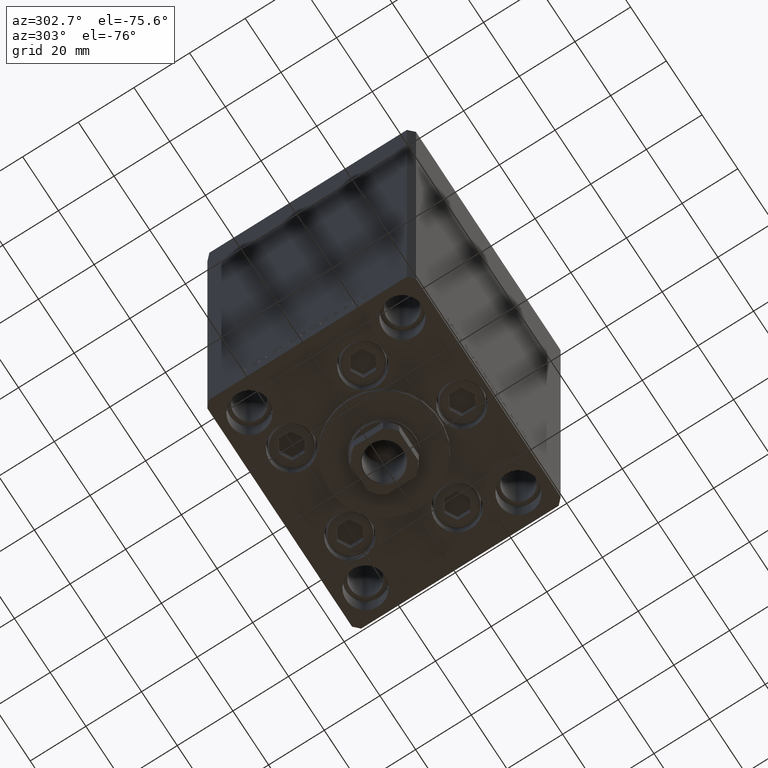
[diagram: clean part render]
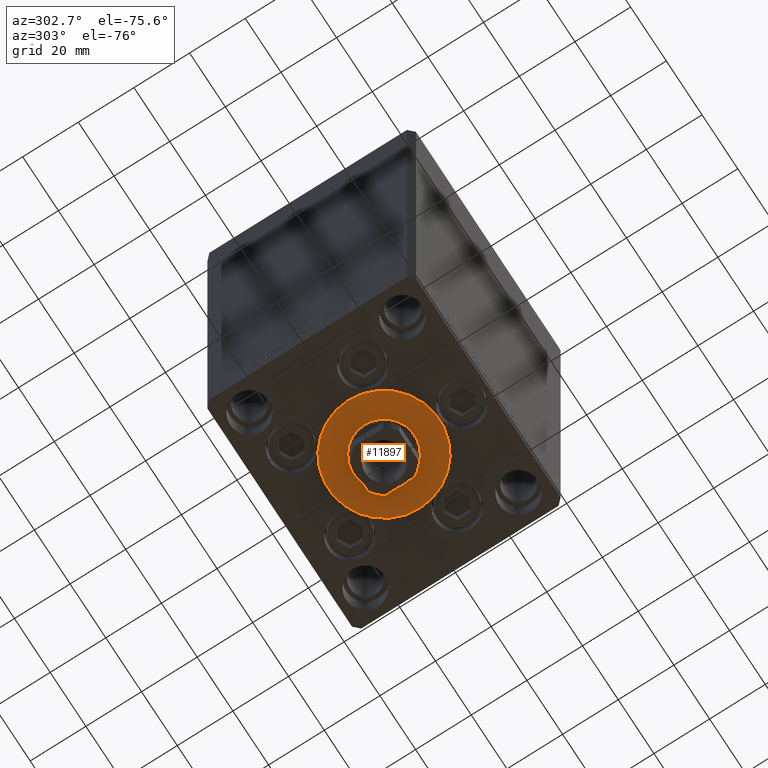
[diagram: same view with one face highlighted and labeled with its STEP entity id]
A machine part, auxiliary view. The second image highlights one B-rep face of the part: STEP entity #11897.
In plain terms, the highlighted planar face has unit normal (0, 0, -1).
Its self-contained STEP definition (entity closure, byte-faithful):
#1716 = EDGE_CURVE ( 'NONE', #13270, #27009, #39607, .T. ) ;
#3123 = DIRECTION ( 'NONE',  ( 1.000000000000000000, 0.000000000000000000, -0.000000000000000000 ) ) ;
#3758 = AXIS2_PLACEMENT_3D ( 'NONE', #9065, #23410, #42478 ) ;
#3853 = DIRECTION ( 'NONE',  ( 0.000000000000000000, 0.000000000000000000, 1.000000000000000000 ) ) ;
#5379 = DIRECTION ( 'NONE',  ( 1.000000000000000000, 0.000000000000000000, 0.000000000000000000 ) ) ;
#5618 = AXIS2_PLACEMENT_3D ( 'NONE', #7319, #3853, #47723 ) ;
#6030 = EDGE_LOOP ( 'NONE', ( #14663, #36541 ) ) ;
#6121 = ORIENTED_EDGE ( 'NONE', *, *, #1716, .F. ) ;
#7319 = CARTESIAN_POINT ( 'NONE',  ( 0.000000000000000000, -6.938893903907228378E-15, 2.000000000000000000 ) ) ;
#8206 = AXIS2_PLACEMENT_3D ( 'NONE', #20210, #31110, #5379 ) ;
#9065 = CARTESIAN_POINT ( 'NONE',  ( 0.000000000000000000, -6.938893903907228378E-15, 2.000000000000000000 ) ) ;
#11897 = ADVANCED_FACE ( 'NONE', ( #17959, #33067 ), #47668, .T. ) ;
#13270 = VERTEX_POINT ( 'NONE', #42150 ) ;
#13845 = EDGE_LOOP ( 'NONE', ( #37184, #6121 ) ) ;
#14663 = ORIENTED_EDGE ( 'NONE', *, *, #40771, .T. ) ;
#16167 = CARTESIAN_POINT ( 'NONE',  ( 11.00000000000000000, -6.938893903907228378E-15, 2.000000000000000000 ) ) ;
#17959 = FACE_BOUND ( 'NONE', #13845, .T. ) ;
#18211 = AXIS2_PLACEMENT_3D ( 'NONE', #32340, #48154, #3123 ) ;
#20210 = CARTESIAN_POINT ( 'NONE',  ( 0.000000000000000000, -6.938893903907228378E-15, 2.000000000000000000 ) ) ;
#23410 = DIRECTION ( 'NONE',  ( 0.000000000000000000, 0.000000000000000000, 1.000000000000000000 ) ) ;
#23796 = EDGE_CURVE ( 'NONE', #27009, #13270, #32730, .T. ) ;
#27009 = VERTEX_POINT ( 'NONE', #16167 ) ;
#29178 = CARTESIAN_POINT ( 'NONE',  ( 20.00000000000000000, -4.489600305612522259E-15, 2.000000000000000000 ) ) ;
#30187 = VERTEX_POINT ( 'NONE', #29178 ) ;
#31110 = DIRECTION ( 'NONE',  ( 0.000000000000000000, 0.000000000000000000, 1.000000000000000000 ) ) ;
#32340 = CARTESIAN_POINT ( 'NONE',  ( 0.000000000000000000, -6.938893903907228378E-15, 2.000000000000000000 ) ) ;
#32480 = DIRECTION ( 'NONE',  ( 0.000000000000000000, 0.000000000000000000, 1.000000000000000000 ) ) ;
#32730 = CIRCLE ( 'NONE', #8206, 11.00000000000000000 ) ;
#33067 = FACE_OUTER_BOUND ( 'NONE', #6030, .T. ) ;
#36185 = CARTESIAN_POINT ( 'NONE',  ( 0.000000000000000000, -6.938893903907228378E-15, 2.000000000000000000 ) ) ;
#36541 = ORIENTED_EDGE ( 'NONE', *, *, #43507, .T. ) ;
#37184 = ORIENTED_EDGE ( 'NONE', *, *, #23796, .F. ) ;
#39607 = CIRCLE ( 'NONE', #5618, 11.00000000000000000 ) ;
#40771 = EDGE_CURVE ( 'NONE', #44013, #30187, #47152, .T. ) ;
#41709 = CIRCLE ( 'NONE', #3758, 20.00000000000000000 ) ;
#42150 = CARTESIAN_POINT ( 'NONE',  ( -11.00000000000000000, -5.591782424845139381E-15, 2.000000000000000000 ) ) ;
#42290 = CARTESIAN_POINT ( 'NONE',  ( -20.00000000000000000, -6.938893903907228378E-15, 2.000000000000000000 ) ) ;
#42478 = DIRECTION ( 'NONE',  ( 1.000000000000000000, 0.000000000000000000, 0.000000000000000000 ) ) ;
#43140 = DIRECTION ( 'NONE',  ( 1.000000000000000000, 0.000000000000000000, 0.000000000000000000 ) ) ;
#43242 = AXIS2_PLACEMENT_3D ( 'NONE', #36185, #32480, #43140 ) ;
#43507 = EDGE_CURVE ( 'NONE', #30187, #44013, #41709, .T. ) ;
#44013 = VERTEX_POINT ( 'NONE', #42290 ) ;
#47152 = CIRCLE ( 'NONE', #43242, 20.00000000000000000 ) ;
#47668 = PLANE ( 'NONE',  #18211 ) ;
#47723 = DIRECTION ( 'NONE',  ( 1.000000000000000000, 0.000000000000000000, 0.000000000000000000 ) ) ;
#48154 = DIRECTION ( 'NONE',  ( 0.000000000000000000, 0.000000000000000000, 1.000000000000000000 ) ) ;